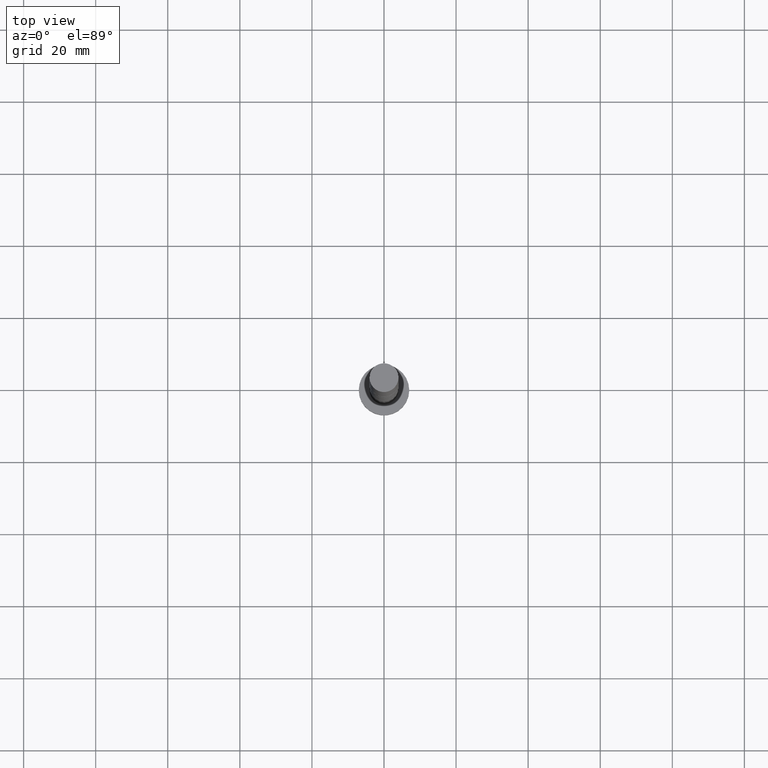
[diagram: clean part render]
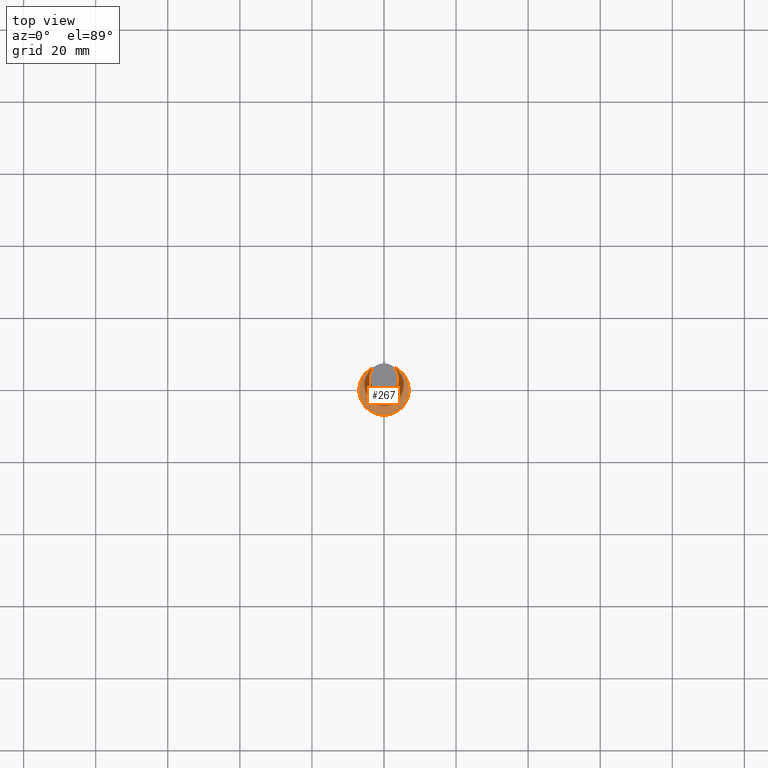
[diagram: same view with one face highlighted and labeled with its STEP entity id]
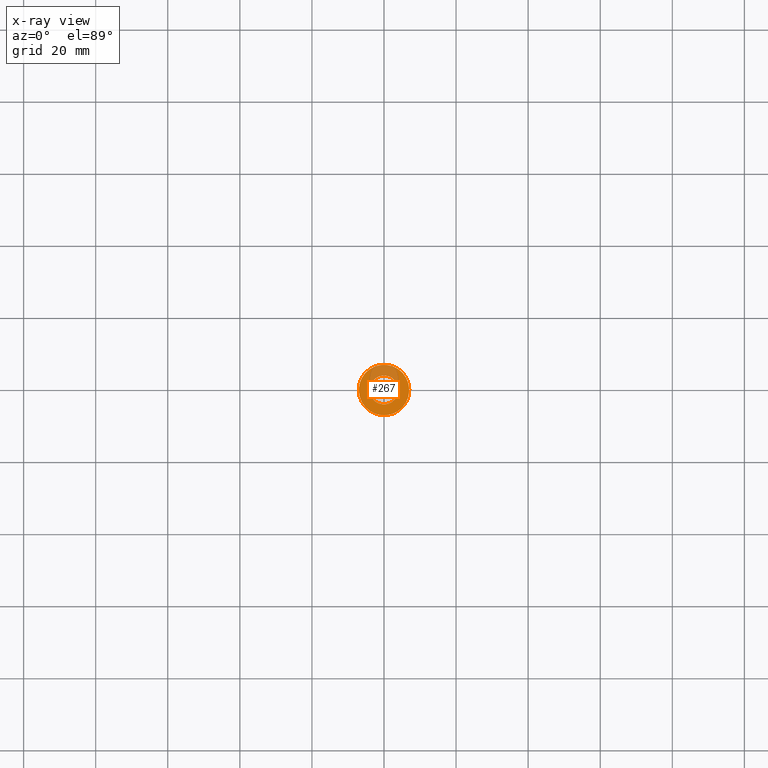
[diagram: x-ray of the same camera — body ghosted, the highlighted face saturated]
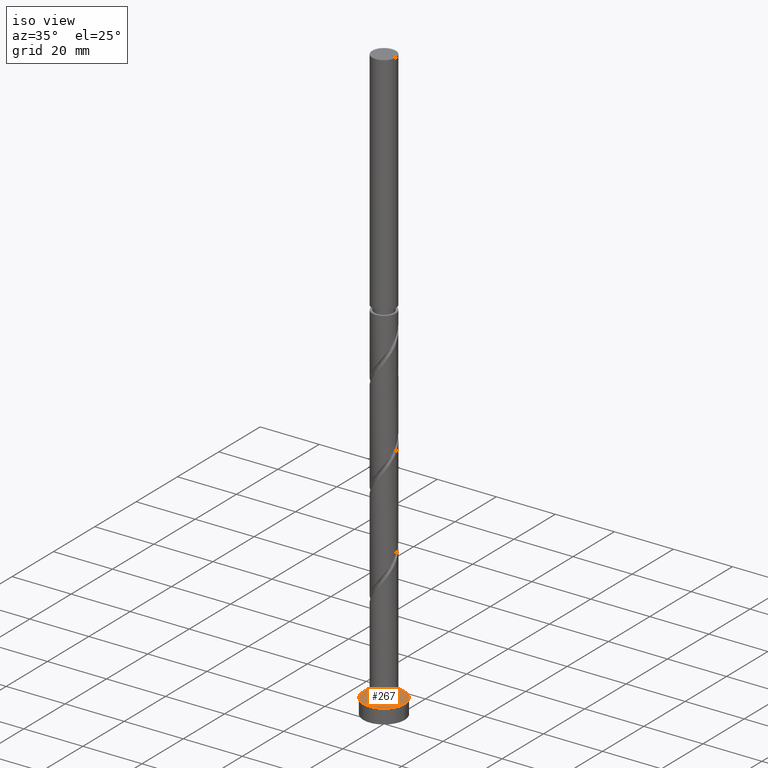
[diagram: same view with one face highlighted and labeled with its STEP entity id]
A machine part, top view. The second image highlights one B-rep face of the part: STEP entity #267.
The next image is the same camera in x-ray: the body ghosted, the highlighted face saturated — about 25% of this face is hidden behind the body in this view.
A second angle (iso view) of the same face is appended — the face is thin or edge-on in the first view.
In plain terms, the highlighted planar face has unit normal (0, 0, 1).
Its self-contained STEP definition (entity closure, byte-faithful):
#38 = EDGE_LOOP ( 'NONE', ( #1524, #1126 ) ) ;
#60 = EDGE_CURVE ( 'NONE', #1254, #1147, #127, .T. ) ;
#75 = DIRECTION ( 'NONE',  ( 1.000000000000000000, 0.000000000000000000, 0.000000000000000000 ) ) ;
#127 = CIRCLE ( 'NONE', #676, 7.000000000000000000 ) ;
#207 = DIRECTION ( 'NONE',  ( 0.000000000000000000, 0.000000000000000000, 1.000000000000000000 ) ) ;
#246 = CIRCLE ( 'NONE', #733, 4.000000000000000000 ) ;
#267 = ADVANCED_FACE ( 'NONE', ( #1686, #1662 ), #1013, .T. ) ;
#280 = DIRECTION ( 'NONE',  ( 0.000000000000000000, 0.000000000000000000, 1.000000000000000000 ) ) ;
#349 = CARTESIAN_POINT ( 'NONE',  ( 0.000000000000000000, 0.000000000000000000, 5.000000000000000000 ) ) ;
#399 = AXIS2_PLACEMENT_3D ( 'NONE', #349, #1687, #75 ) ;
#483 = AXIS2_PLACEMENT_3D ( 'NONE', #1632, #1385, #1510 ) ;
#676 = AXIS2_PLACEMENT_3D ( 'NONE', #977, #833, #709 ) ;
#709 = DIRECTION ( 'NONE',  ( 1.000000000000000000, 0.000000000000000000, 0.000000000000000000 ) ) ;
#733 = AXIS2_PLACEMENT_3D ( 'NONE', #1208, #280, #1085 ) ;
#785 = CARTESIAN_POINT ( 'NONE',  ( 7.000000000000000000, 8.572527594031473190E-16, 5.000000000000000000 ) ) ;
#789 = EDGE_CURVE ( 'NONE', #1281, #1545, #1626, .T. ) ;
#833 = DIRECTION ( 'NONE',  ( 0.000000000000000000, 0.000000000000000000, 1.000000000000000000 ) ) ;
#977 = CARTESIAN_POINT ( 'NONE',  ( 0.000000000000000000, 0.000000000000000000, 5.000000000000000000 ) ) ;
#1013 = PLANE ( 'NONE',  #1087 ) ;
#1085 = DIRECTION ( 'NONE',  ( 1.000000000000000000, 0.000000000000000000, 0.000000000000000000 ) ) ;
#1087 = AXIS2_PLACEMENT_3D ( 'NONE', #1548, #207, #1520 ) ;
#1095 = EDGE_LOOP ( 'NONE', ( #1665, #1656 ) ) ;
#1126 = ORIENTED_EDGE ( 'NONE', *, *, #1567, .T. ) ;
#1145 = CIRCLE ( 'NONE', #399, 7.000000000000000000 ) ;
#1147 = VERTEX_POINT ( 'NONE', #785 ) ;
#1208 = CARTESIAN_POINT ( 'NONE',  ( 0.000000000000000000, 0.000000000000000000, 5.000000000000000000 ) ) ;
#1254 = VERTEX_POINT ( 'NONE', #1725 ) ;
#1279 = EDGE_CURVE ( 'NONE', #1545, #1281, #246, .T. ) ;
#1281 = VERTEX_POINT ( 'NONE', #1499 ) ;
#1385 = DIRECTION ( 'NONE',  ( 0.000000000000000000, 0.000000000000000000, 1.000000000000000000 ) ) ;
#1499 = CARTESIAN_POINT ( 'NONE',  ( -4.000000000000000000, 0.000000000000000000, 5.000000000000000000 ) ) ;
#1510 = DIRECTION ( 'NONE',  ( 1.000000000000000000, 0.000000000000000000, 0.000000000000000000 ) ) ;
#1520 = DIRECTION ( 'NONE',  ( 1.000000000000000000, 0.000000000000000000, -0.000000000000000000 ) ) ;
#1524 = ORIENTED_EDGE ( 'NONE', *, *, #60, .T. ) ;
#1545 = VERTEX_POINT ( 'NONE', #1655 ) ;
#1548 = CARTESIAN_POINT ( 'NONE',  ( 0.000000000000000000, 0.000000000000000000, 5.000000000000000000 ) ) ;
#1567 = EDGE_CURVE ( 'NONE', #1147, #1254, #1145, .T. ) ;
#1626 = CIRCLE ( 'NONE', #483, 4.000000000000000000 ) ;
#1632 = CARTESIAN_POINT ( 'NONE',  ( 0.000000000000000000, 0.000000000000000000, 5.000000000000000000 ) ) ;
#1655 = CARTESIAN_POINT ( 'NONE',  ( 4.000000000000000000, 4.898587196589412829E-16, 5.000000000000000000 ) ) ;
#1656 = ORIENTED_EDGE ( 'NONE', *, *, #1279, .F. ) ;
#1662 = FACE_OUTER_BOUND ( 'NONE', #38, .T. ) ;
#1665 = ORIENTED_EDGE ( 'NONE', *, *, #789, .F. ) ;
#1686 = FACE_BOUND ( 'NONE', #1095, .T. ) ;
#1687 = DIRECTION ( 'NONE',  ( 0.000000000000000000, 0.000000000000000000, 1.000000000000000000 ) ) ;
#1725 = CARTESIAN_POINT ( 'NONE',  ( -7.000000000000000000, 0.000000000000000000, 5.000000000000000000 ) ) ;